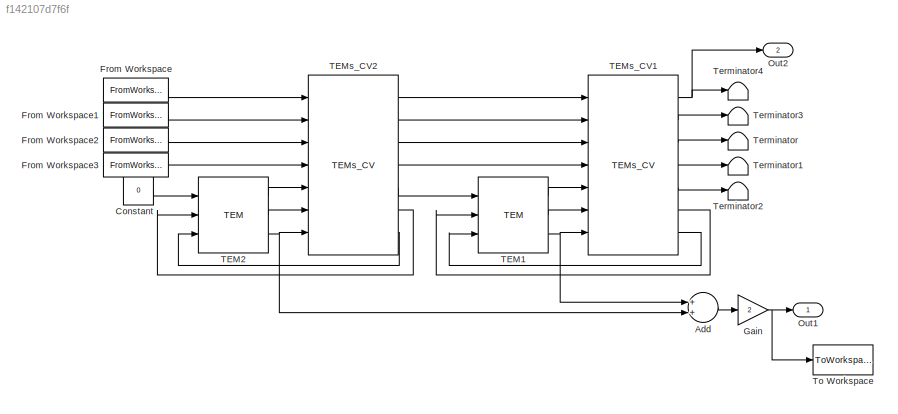
MODEL slx_f142107d7f6f
KIND model
CONFIG AbsTol = auto
CONFIG FixedStep = 1
CONFIG MaxStep = auto
CONFIG MinStep = auto
CONFIG RelTol = 5e-3
CONFIG SampleTimeConstraint = Unconstrained
CONFIG Solver = ode3
CONFIG SolverMode = Auto
CONFIG SolverName = ode3
CONFIG StartTime = 0.0
CONFIG StopTime = 656
BLOCK [Sum] Add
  InputSameDT = off
  OutDataTypeStr = Inherit: Inherit via internal rule
  Ports = [2, 1]
  SaturateOnIntegerOverflow = off
BLOCK [Constant] Constant
  Value = 0
BLOCK [FromWorkspace] From Workspace
  SampleTime = 0
  VariableName = T_exh
  ZeroCross = on
BLOCK [FromWorkspace] From Workspace1
  SampleTime = 0
  VariableName = T_col
  ZeroCross = on
BLOCK [FromWorkspace] From Workspace2
  SampleTime = 0
  VariableName = m_exh
  ZeroCross = on
BLOCK [FromWorkspace] From Workspace3
  SampleTime = 0
  VariableName = m_col
  ZeroCross = on
BLOCK [Gain] Gain
  Gain = 2
  OutDataTypeStr = Inherit: Inherit via internal rule
  ParamDataTypeStr = Inherit: Inherit via internal rule
  SaturateOnIntegerOverflow = off
BLOCK [Outport] Out1
  IconDisplay = Port number
BLOCK [Outport] Out2
  IconDisplay = Port number
  Port = 2
BLOCK [Reference] TEM1  REF=LU_TEG/TEM
  Ports = [3, 3]
  SourceBlock = LU_TEG/TEM
  Tune_er = Tune_er
  Tune_tr = Tune_tr
  a = a
  ct1 = ct1
  ct2 = ct2
  f = f
  l = l
  l_cw = l_cw
  n = n
BLOCK [Reference] TEM2  REF=LU_TEG/TEM
  Ports = [3, 3]
  SourceBlock = LU_TEG/TEM
  Tune_er = Tune_er
  Tune_tr = Tune_tr
  a = a
  ct1 = ct1
  ct2 = ct2
  f = f
  l = l
  l_cw = l_cw
  n = n
BLOCK [Reference] TEMs_CV1  REF=LU_TEG/TEMs_CV
  B = B
  C_ap = C_ap
  C_cxr = C_cxr
  C_hxr = C_hxr
  Di_cxr = Di_cxr
  M = M
  M_ap = M_ap
  M_cxr = M_cxr
  M_hxr = M_hxr
  Nf_hxr = Nf_hxr
  Ports = [7, 7]
  SourceBlock = LU_TEG/TEMs_CV
  T_cint = T_cint
  T_hint = T_hint
  a = a
  a_hxr = a_hxr
  b_hxr = b_hxr
  ca1 = ca1
  ca2 = ca2
  ca3 = ca3
  cb1 = cb1
  cb2 = cb2
  cb3 = cb3
  l = l
  l_cw = l_cw
  l_hxr = l_hxr
  side = side
  tf_hxr = tf_hxr
BLOCK [Reference] TEMs_CV2  REF=LU_TEG/TEMs_CV
  B = B
  C_ap = C_ap
  C_cxr = C_cxr
  C_hxr = C_hxr
  Di_cxr = Di_cxr
  M = M
  M_ap = M_ap
  M_cxr = M_cxr
  M_hxr = M_hxr
  Nf_hxr = Nf_hxr
  Ports = [7, 7]
  SourceBlock = LU_TEG/TEMs_CV
  T_cint = T_cint
  T_hint = T_hint
  a = a
  a_hxr = a_hxr
  b_hxr = b_hxr
  ca1 = ca1
  ca2 = ca2
  ca3 = ca3
  cb1 = cb1
  cb2 = cb2
  cb3 = cb3
  l = l
  l_cw = l_cw
  l_hxr = l_hxr
  side = side
  tf_hxr = tf_hxr
BLOCK [Terminator] Terminator
BLOCK [Terminator] Terminator1
BLOCK [Terminator] Terminator2
BLOCK [Terminator] Terminator3
BLOCK [Terminator] Terminator4
BLOCK [ToWorkspace] To Workspace
  FixptAsFi = on
  MaxDataPoints = inf
  Ports = [1]
  SampleTime = -1
  Save2DSignal = 3-D array (concatenate along third dimension)
  SaveFormat = Structure With Time
  VariableName = u
LINE Add:1 -> Gain:1
LINE Constant:1 -> TEM2:1
LINE From Workspace1:1 -> TEMs_CV2:2
LINE From Workspace2:1 -> TEMs_CV2:3
LINE From Workspace3:1 -> TEMs_CV2:4
LINE From Workspace:1 -> TEMs_CV2:1
NET Gain:1 -> Out1:1, To Workspace:1
LINE TEM1:1 -> TEMs_CV1:5
LINE TEM1:2 -> TEMs_CV1:6
NET TEM1:3 -> Add:1, TEMs_CV1:7
LINE TEM2:1 -> TEMs_CV2:5
LINE TEM2:2 -> TEMs_CV2:6
NET TEM2:3 -> Add:2, TEMs_CV2:7
NET TEMs_CV1:1 -> Out2:1, Terminator4:1
LINE TEMs_CV1:2 -> Terminator3:1
LINE TEMs_CV1:3 -> Terminator:1
LINE TEMs_CV1:4 -> Terminator1:1
LINE TEMs_CV1:5 -> Terminator2:1
LINE TEMs_CV1:6 -> TEM1:2
LINE TEMs_CV1:7 -> TEM1:3
LINE TEMs_CV2:1 -> TEMs_CV1:1
LINE TEMs_CV2:2 -> TEMs_CV1:2
LINE TEMs_CV2:3 -> TEMs_CV1:3
LINE TEMs_CV2:4 -> TEMs_CV1:4
LINE TEMs_CV2:5 -> TEM1:1
LINE TEMs_CV2:6 -> TEM2:2
LINE TEMs_CV2:7 -> TEM2:3
note: NET lines group one-source signal fan-out (src -> all destinations, sorted); 1:1 wires keep LINE
